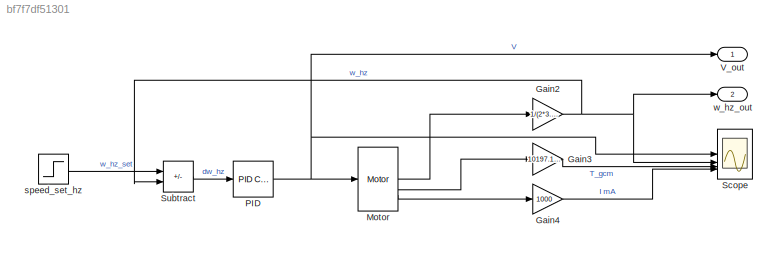
MODEL slx_bf7f7df51301
KIND model
CONFIG AbsTol = auto
CONFIG EnableMultiTasking = off
CONFIG FixedStep = auto
CONFIG MaxStep = auto
CONFIG MinStep = auto
CONFIG RelTol = 1e-3
CONFIG SampleTimeConstraint = Unconstrained
CONFIG SolverName = VariableStepAuto
CONFIG StartTime = 0.0
CONFIG StopTime = 10.0
WORKSPACE source: mxarray member
WORKSPACE F = 1.3e-07
WORKSPACE J = 1e-09
WORKSPACE K_t = 0.0014172
WORKSPACE L = 0.00024
WORKSPACE R = 2.4
BLOCK [Gain] Gain2
  Gain = 1/(2*3.14)
BLOCK [Gain] Gain3
  Gain = 10197.162129779
BLOCK [Gain] Gain4
  Gain = 1000
BLOCK [Reference] Motor  REF=BrushedDC/Motor
  SourceBlock = BrushedDC/Motor
  SourceType = SubSystem
BLOCK [Reference] PID  REF=slpidlib/PID Controller
  LibrarySourceBlock = simulink/Continuous/PID Controller
  SourceBlock = slpidlib/PID Controller
  SourceType = PID 1dof
BLOCK [Scope] Scope
  Commented = on
  Floating = off
  NumInputPorts = 4
  ScopeSpecificationString = Simulink.scopes.TimeScopeBlockCfg('CurrentConfiguration', extmgr.ConfigurationSet(extmgr.Configuration('Core','General UI',true),extmgr.Configuration('Core','Source UI',true),extmgr.Configuration('Sources','WiredSimulink',true),extmgr.Configuration('Visuals','Time Domain',true,'SerializedDisplays',{struct('MinYLimReal','-62.5','MaxYLimReal','562.5','YLabelReal','','MinYLimMag','0.00000','MaxYLimMa...<+1975ch>
BLOCK [Sum] Subtract
  IconShape = rectangular
  Inputs = +-
BLOCK [Outport] V_out
BLOCK [Step] speed_set_hz
  After = 100
  SampleTime = 0
BLOCK [Outport] w_hz_out
  Port = 2
NET Gain2:1 -> Scope:2, Subtract:2, w_hz_out:1
LINE Gain3:1 -> Scope:3
LINE Gain4:1 -> Scope:4
LINE Motor:1 -> Gain2:1
LINE Motor:2 -> Gain3:1
LINE Motor:3 -> Gain4:1
NET PID:1 -> Motor:1, Scope:1, V_out:1
LINE Subtract:1 -> PID:1
LINE speed_set_hz:1 -> Subtract:1
note: NET lines group one-source signal fan-out (src -> all destinations, sorted); 1:1 wires keep LINE
